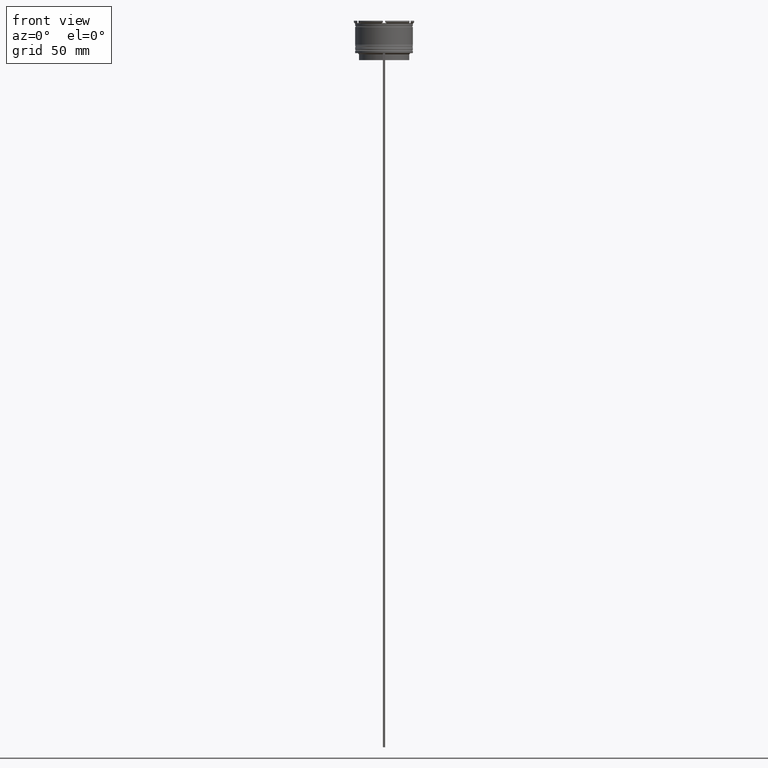
[diagram: clean part render]
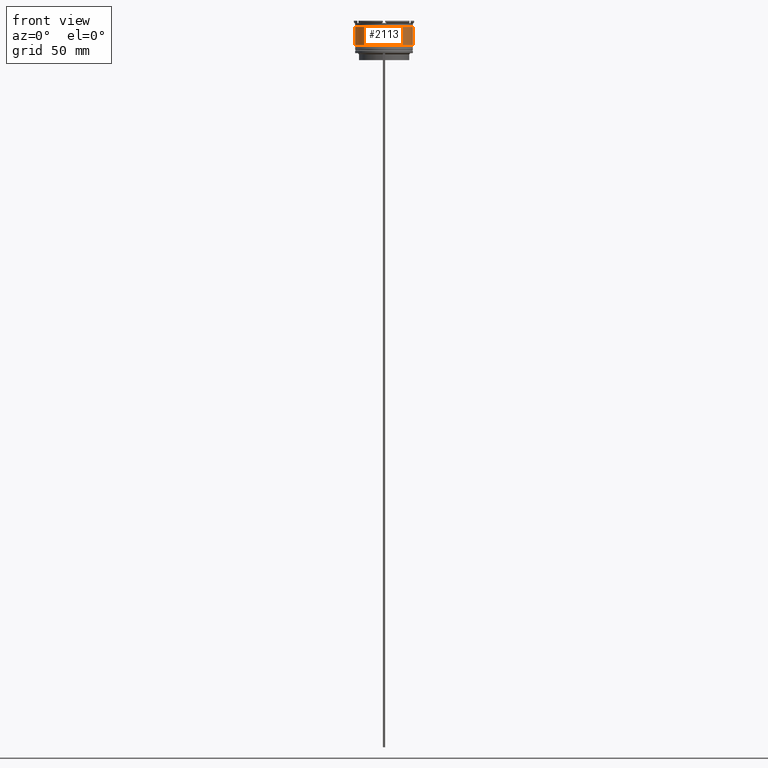
[diagram: same view with one face highlighted and labeled with its STEP entity id]
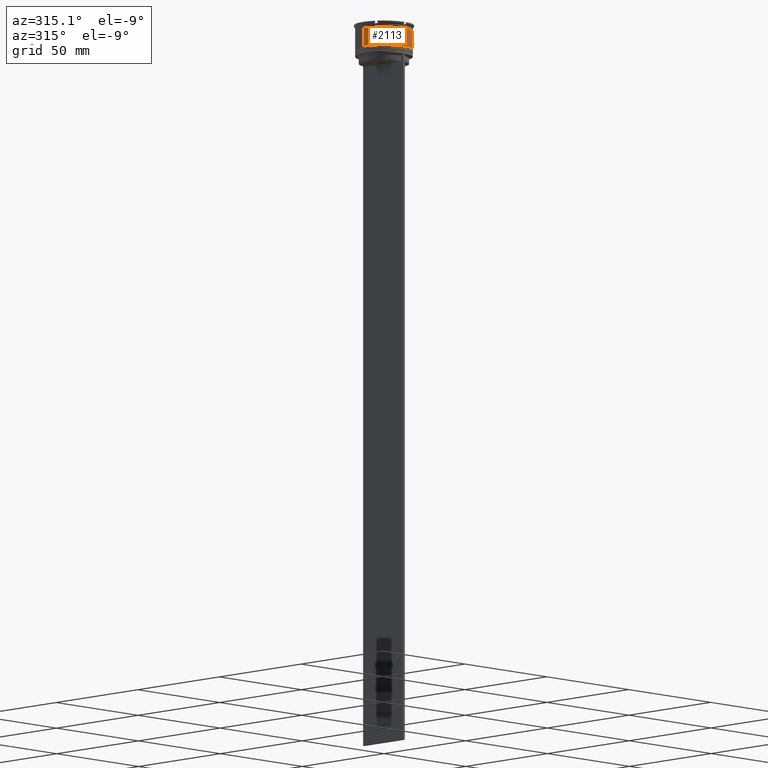
[diagram: same view with one face highlighted and labeled with its STEP entity id]
A machine part, front view. The second image highlights one B-rep face of the part: STEP entity #2113.
A second angle (auxiliary view) of the same face is appended — the face is thin or edge-on in the first view.
In plain terms, the highlighted cylindrical surface (edge-blend (fillet) strip) has radius 12.5 mm, axis along (-0, -0, 1).
Its self-contained STEP definition (entity closure, byte-faithful):
#1 = CARTESIAN_POINT ( 'NONE',  ( 0.000000000000000000, 0.000000000000000000, -2.699999999999999289 ) ) ;
#12 = DIRECTION ( 'NONE',  ( -0.000000000000000000, -0.000000000000000000, 1.000000000000000000 ) ) ;
#184 = DIRECTION ( 'NONE',  ( -0.000000000000000000, -0.000000000000000000, 1.000000000000000000 ) ) ;
#189 = DIRECTION ( 'NONE',  ( 1.000000000000000000, 0.000000000000000000, 0.000000000000000000 ) ) ;
#359 = DIRECTION ( 'NONE',  ( 1.000000000000000000, 0.000000000000000000, 0.000000000000000000 ) ) ;
#418 = DIRECTION ( 'NONE',  ( -0.000000000000000000, -0.000000000000000000, 1.000000000000000000 ) ) ;
#450 = CARTESIAN_POINT ( 'NONE',  ( -12.49999999999999822, 1.530808498934191324E-15, -2.699999999999999289 ) ) ;
#522 = VECTOR ( 'NONE', #12, 1000.000000000000000 ) ;
#527 = CIRCLE ( 'NONE', #896, 12.49999999999999822 ) ;
#552 = CARTESIAN_POINT ( 'NONE',  ( 12.50000000000000000, 0.000000000000000000, 0.000000000000000000 ) ) ;
#598 = ORIENTED_EDGE ( 'NONE', *, *, #1313, .T. ) ;
#611 = AXIS2_PLACEMENT_3D ( 'NONE', #1437, #760, #359 ) ;
#760 = DIRECTION ( 'NONE',  ( -0.000000000000000000, -0.000000000000000000, 1.000000000000000000 ) ) ;
#859 = EDGE_CURVE ( 'NONE', #1882, #1960, #1940, .T. ) ;
#896 = AXIS2_PLACEMENT_3D ( 'NONE', #1, #1266, #2142 ) ;
#981 = ORIENTED_EDGE ( 'NONE', *, *, #1027, .T. ) ;
#1027 = EDGE_CURVE ( 'NONE', #1882, #2066, #2293, .T. ) ;
#1119 = ORIENTED_EDGE ( 'NONE', *, *, #2771, .F. ) ;
#1180 = VERTEX_POINT ( 'NONE', #1419 ) ;
#1216 = CYLINDRICAL_SURFACE ( 'NONE', #611, 12.50000000000000000 ) ;
#1266 = DIRECTION ( 'NONE',  ( -0.000000000000000000, -0.000000000000000000, 1.000000000000000000 ) ) ;
#1313 = EDGE_CURVE ( 'NONE', #2066, #1180, #1461, .T. ) ;
#1419 = CARTESIAN_POINT ( 'NONE',  ( 12.49999999999999822, 0.000000000000000000, -2.699999999999999289 ) ) ;
#1437 = CARTESIAN_POINT ( 'NONE',  ( 0.000000000000000000, 0.000000000000000000, 0.000000000000000000 ) ) ;
#1461 = LINE ( 'NONE', #552, #2786 ) ;
#1496 = EDGE_LOOP ( 'NONE', ( #1777, #981, #598, #1119 ) ) ;
#1777 = ORIENTED_EDGE ( 'NONE', *, *, #859, .F. ) ;
#1882 = VERTEX_POINT ( 'NONE', #2551 ) ;
#1940 = LINE ( 'NONE', #1955, #522 ) ;
#1955 = CARTESIAN_POINT ( 'NONE',  ( -12.50000000000000000, 1.530808498934191521E-15, 0.000000000000000000 ) ) ;
#1960 = VERTEX_POINT ( 'NONE', #450 ) ;
#2066 = VERTEX_POINT ( 'NONE', #2446 ) ;
#2113 = ADVANCED_FACE ( 'NONE', ( #2491 ), #1216, .T. ) ;
#2137 = CARTESIAN_POINT ( 'NONE',  ( 0.000000000000000000, 0.000000000000000000, -10.50000000000000178 ) ) ;
#2142 = DIRECTION ( 'NONE',  ( 1.000000000000000000, 0.000000000000000000, 0.000000000000000000 ) ) ;
#2293 = CIRCLE ( 'NONE', #2651, 12.50000000000000178 ) ;
#2446 = CARTESIAN_POINT ( 'NONE',  ( 12.50000000000000178, 0.000000000000000000, -10.50000000000000178 ) ) ;
#2491 = FACE_OUTER_BOUND ( 'NONE', #1496, .T. ) ;
#2551 = CARTESIAN_POINT ( 'NONE',  ( -12.50000000000000355, 1.530808498934191916E-15, -10.50000000000000178 ) ) ;
#2651 = AXIS2_PLACEMENT_3D ( 'NONE', #2137, #418, #189 ) ;
#2771 = EDGE_CURVE ( 'NONE', #1960, #1180, #527, .T. ) ;
#2786 = VECTOR ( 'NONE', #184, 1000.000000000000000 ) ;